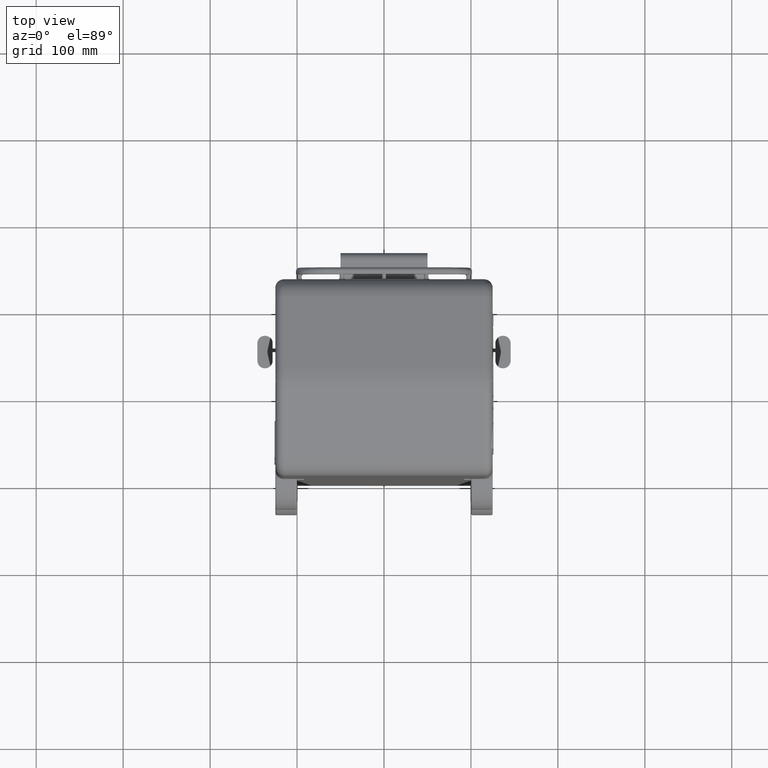
[diagram: clean part render]
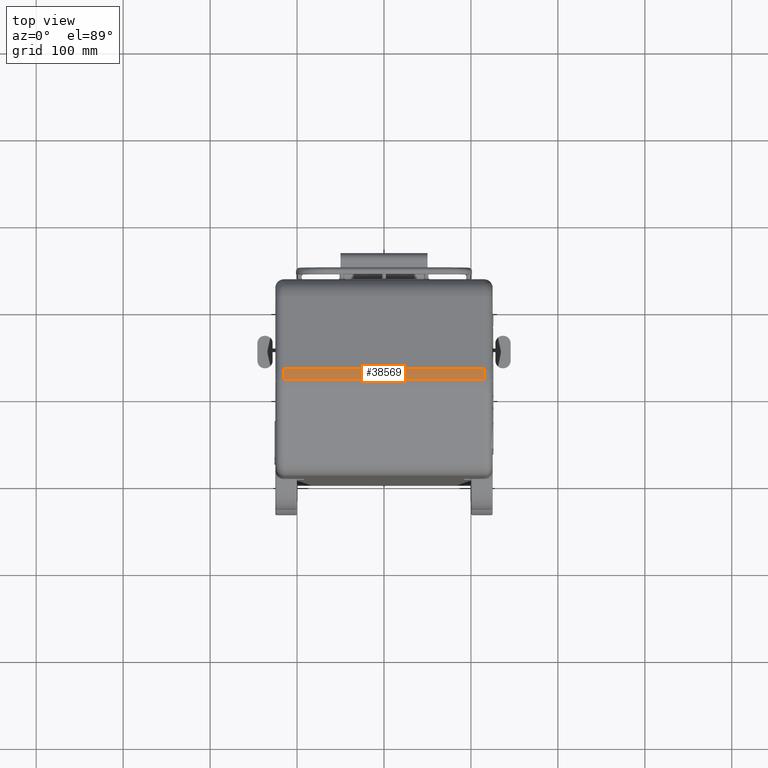
[diagram: same view with one face highlighted and labeled with its STEP entity id]
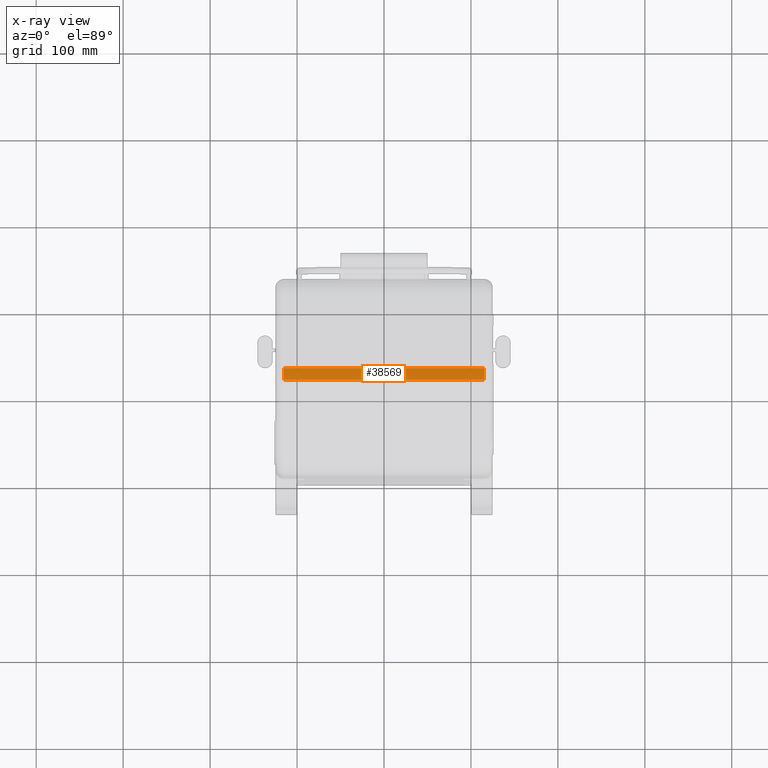
[diagram: x-ray of the same camera — body ghosted, the highlighted face saturated]
A machine part, top view. The second image highlights one B-rep face of the part: STEP entity #38569.
The next image is the same camera in x-ray: the body ghosted, the highlighted face saturated — about 0% of this face is hidden behind the body in this view.
In plain terms, the highlighted cylindrical surface (partial cylindrical patch) has radius 60 mm, axis along (-1, 0, 0).
Its self-contained STEP definition (entity closure, byte-faithful):
#117 = DIRECTION ( 'NONE',  ( 1.000000000000000000, -0.000000000000000000, -0.000000000000000000 ) ) ;
#486 = VECTOR ( 'NONE', #14958, 1000.000000000000000 ) ;
#765 = CARTESIAN_POINT ( 'NONE',  ( -114.9999999999999858, 212.1690759922572909, -77.39686691649284001 ) ) ;
#1348 = DIRECTION ( 'NONE',  ( 0.000000000000000000, 0.000000000000000000, 1.000000000000000000 ) ) ;
#1762 = DIRECTION ( 'NONE',  ( -1.000000000000000000, -0.000000000000000000, 0.000000000000000000 ) ) ;
#2175 = EDGE_CURVE ( 'NONE', #12892, #38058, #26185, .T. ) ;
#7938 = CARTESIAN_POINT ( 'NONE',  ( 115.0000000000000000, 212.1690759922572909, -137.3968669164928258 ) ) ;
#8212 = EDGE_CURVE ( 'NONE', #12892, #28750, #31362, .T. ) ;
#9479 = EDGE_LOOP ( 'NONE', ( #31752, #35672, #38548, #15330 ) ) ;
#10451 = AXIS2_PLACEMENT_3D ( 'NONE', #7938, #1762, #1348 ) ;
#12892 = VERTEX_POINT ( 'NONE', #27590 ) ;
#13795 = CYLINDRICAL_SURFACE ( 'NONE', #32543, 60.00000000000000000 ) ;
#14958 = DIRECTION ( 'NONE',  ( -1.000000000000000000, 0.000000000000000000, 0.000000000000000000 ) ) ;
#15330 = ORIENTED_EDGE ( 'NONE', *, *, #41408, .T. ) ;
#16016 = CARTESIAN_POINT ( 'NONE',  ( -114.9999999999999858, 225.1649601736500870, -78.82121502644703526 ) ) ;
#16394 = FACE_OUTER_BOUND ( 'NONE', #9479, .T. ) ;
#19129 = VERTEX_POINT ( 'NONE', #16016 ) ;
#21801 = CARTESIAN_POINT ( 'NONE',  ( 125.0000000000000000, 212.1690759922572909, -77.39686691649284001 ) ) ;
#22776 = LINE ( 'NONE', #35732, #39807 ) ;
#23100 = DIRECTION ( 'NONE',  ( 1.000000000000000000, 0.000000000000000000, -0.000000000000000000 ) ) ;
#23109 = CARTESIAN_POINT ( 'NONE',  ( 115.0000000000000000, 225.1649601736500870, -78.82121502644703526 ) ) ;
#23783 = EDGE_CURVE ( 'NONE', #19129, #38058, #22776, .T. ) ;
#24044 = DIRECTION ( 'NONE',  ( -1.000000000000000000, 0.000000000000000000, 0.000000000000000000 ) ) ;
#26185 = CIRCLE ( 'NONE', #10451, 60.00000000000000000 ) ;
#26711 = CARTESIAN_POINT ( 'NONE',  ( -114.9999999999999858, 212.1690759922572909, -137.3968669164928258 ) ) ;
#27590 = CARTESIAN_POINT ( 'NONE',  ( 115.0000000000000000, 212.1690759922572909, -77.39686691649282579 ) ) ;
#28750 = VERTEX_POINT ( 'NONE', #765 ) ;
#29376 = CIRCLE ( 'NONE', #34803, 60.00000000000000000 ) ;
#30091 = DIRECTION ( 'NONE',  ( 0.000000000000000000, -3.700743415417188731E-15, 1.000000000000000000 ) ) ;
#31362 = LINE ( 'NONE', #21801, #486 ) ;
#31752 = ORIENTED_EDGE ( 'NONE', *, *, #8212, .F. ) ;
#32543 = AXIS2_PLACEMENT_3D ( 'NONE', #36804, #24044, #37439 ) ;
#34803 = AXIS2_PLACEMENT_3D ( 'NONE', #26711, #23100, #30091 ) ;
#35672 = ORIENTED_EDGE ( 'NONE', *, *, #2175, .T. ) ;
#35732 = CARTESIAN_POINT ( 'NONE',  ( 125.0000000000000000, 225.1649601736500870, -78.82121502644703526 ) ) ;
#36804 = CARTESIAN_POINT ( 'NONE',  ( 125.0000000000000000, 212.1690759922572909, -137.3968669164928258 ) ) ;
#37439 = DIRECTION ( 'NONE',  ( 0.000000000000000000, 0.000000000000000000, 1.000000000000000000 ) ) ;
#38058 = VERTEX_POINT ( 'NONE', #23109 ) ;
#38548 = ORIENTED_EDGE ( 'NONE', *, *, #23783, .F. ) ;
#38569 = ADVANCED_FACE ( 'NONE', ( #16394 ), #13795, .T. ) ;
#39807 = VECTOR ( 'NONE', #117, 1000.000000000000000 ) ;
#41408 = EDGE_CURVE ( 'NONE', #19129, #28750, #29376, .T. ) ;